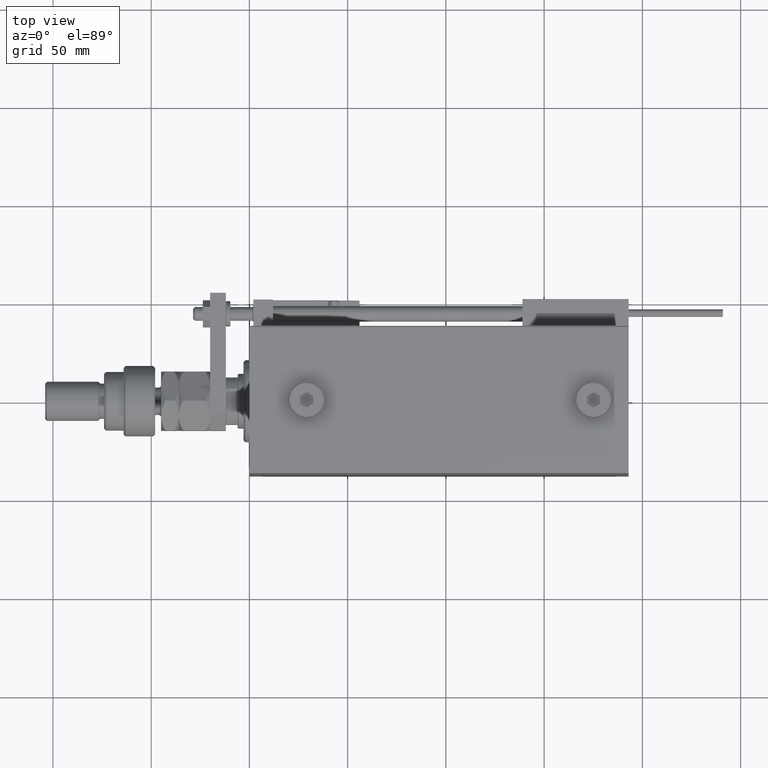
[diagram: clean part render]
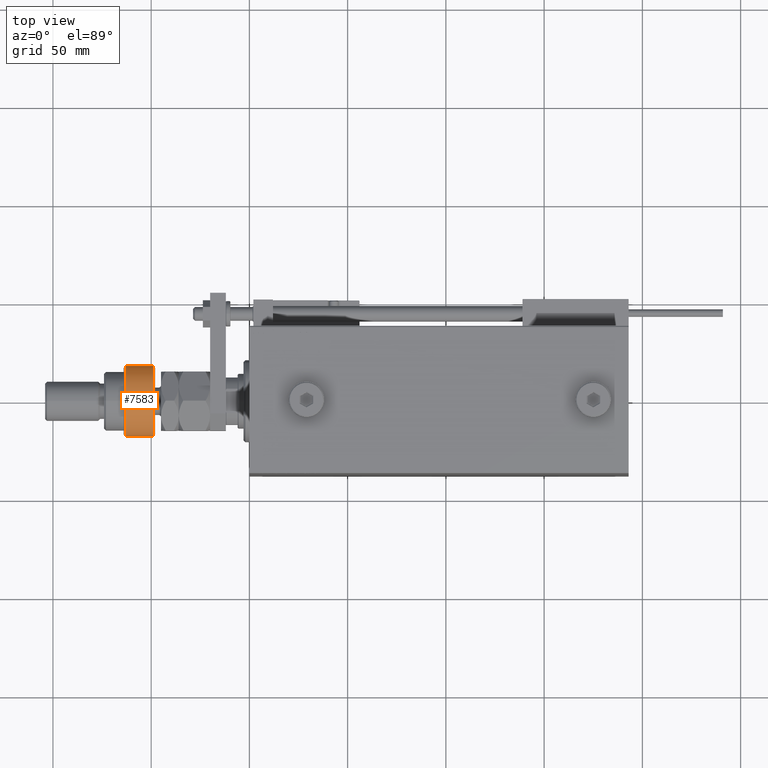
[diagram: same view with one face highlighted and labeled with its STEP entity id]
A machine part, top view. The second image highlights one B-rep face of the part: STEP entity #7583.
In plain terms, the highlighted cylindrical surface (edge-blend (fillet) strip) has radius 18 mm, axis along (1, -0, -0).
Its self-contained STEP definition (entity closure, byte-faithful):
#1040 = EDGE_CURVE ( 'NONE', #18775, #26937, #3044, .T. ) ;
#2154 = CIRCLE ( 'NONE', #39139, 18.00000000000000000 ) ;
#2356 = LINE ( 'NONE', #19147, #20988 ) ;
#3044 = CIRCLE ( 'NONE', #28574, 18.00000000000000000 ) ;
#3672 = CARTESIAN_POINT ( 'NONE',  ( -16.36306817195357155, -7.500000000000000000, 14.99999999999999645 ) ) ;
#4516 = DIRECTION ( 'NONE',  ( 1.000000000000000000, 0.000000000000000000, 0.000000000000000000 ) ) ;
#4824 = CIRCLE ( 'NONE', #18908, 18.00000000000000000 ) ;
#5431 = EDGE_CURVE ( 'NONE', #7237, #26937, #18659, .T. ) ;
#7088 = CYLINDRICAL_SURFACE ( 'NONE', #12610, 18.00000000000000000 ) ;
#7237 = VERTEX_POINT ( 'NONE', #40790 ) ;
#7583 = ADVANCED_FACE ( 'NONE', ( #23629 ), #7088, .T. ) ;
#10220 = EDGE_CURVE ( 'NONE', #10633, #18775, #2154, .T. ) ;
#10633 = VERTEX_POINT ( 'NONE', #53790 ) ;
#11167 = DIRECTION ( 'NONE',  ( 1.000000000000000000, 0.000000000000000000, 0.000000000000000000 ) ) ;
#12511 = CARTESIAN_POINT ( 'NONE',  ( 0.000000000000000000, 0.000000000000000000, 14.99999999999999645 ) ) ;
#12610 = AXIS2_PLACEMENT_3D ( 'NONE', #40457, #36318, #23085 ) ;
#13301 = CARTESIAN_POINT ( 'NONE',  ( -16.36306817195357155, 7.500000000000000000, 1.000000000000011324 ) ) ;
#13971 = CARTESIAN_POINT ( 'NONE',  ( -16.36306817195357155, 7.500000000000000000, 17.50000000000000000 ) ) ;
#17482 = ORIENTED_EDGE ( 'NONE', *, *, #51031, .T. ) ;
#18659 = LINE ( 'NONE', #13971, #38561 ) ;
#18775 = VERTEX_POINT ( 'NONE', #42665 ) ;
#18908 = AXIS2_PLACEMENT_3D ( 'NONE', #12511, #29883, #4516 ) ;
#19147 = CARTESIAN_POINT ( 'NONE',  ( -16.36306817195357155, -7.500000000000000000, 17.50000000000000000 ) ) ;
#19295 = EDGE_CURVE ( 'NONE', #45605, #10633, #2356, .T. ) ;
#19587 = ORIENTED_EDGE ( 'NONE', *, *, #1040, .T. ) ;
#20988 = VECTOR ( 'NONE', #43316, 1000.000000000000000 ) ;
#23085 = DIRECTION ( 'NONE',  ( -1.000000000000000000, 0.000000000000000000, 0.000000000000000000 ) ) ;
#23629 = FACE_OUTER_BOUND ( 'NONE', #28692, .T. ) ;
#24115 = DIRECTION ( 'NONE',  ( -0.000000000000000000, -0.000000000000000000, 1.000000000000000000 ) ) ;
#25622 = CARTESIAN_POINT ( 'NONE',  ( 0.000000000000000000, 0.000000000000000000, 1.000000000000011324 ) ) ;
#26937 = VERTEX_POINT ( 'NONE', #13301 ) ;
#28574 = AXIS2_PLACEMENT_3D ( 'NONE', #25622, #29497, #43241 ) ;
#28692 = EDGE_LOOP ( 'NONE', ( #52512, #17482, #48288, #47401, #19587 ) ) ;
#29497 = DIRECTION ( 'NONE',  ( -0.000000000000000000, -0.000000000000000000, 1.000000000000000000 ) ) ;
#29883 = DIRECTION ( 'NONE',  ( 0.000000000000000000, 0.000000000000000000, -1.000000000000000000 ) ) ;
#30798 = DIRECTION ( 'NONE',  ( -0.000000000000000000, -0.000000000000000000, -1.000000000000000000 ) ) ;
#36318 = DIRECTION ( 'NONE',  ( -0.000000000000000000, -0.000000000000000000, -1.000000000000000000 ) ) ;
#38561 = VECTOR ( 'NONE', #30798, 1000.000000000000000 ) ;
#39139 = AXIS2_PLACEMENT_3D ( 'NONE', #53587, #24115, #11167 ) ;
#40457 = CARTESIAN_POINT ( 'NONE',  ( 0.000000000000000000, 0.000000000000000000, 16.00000000000000000 ) ) ;
#40790 = CARTESIAN_POINT ( 'NONE',  ( -16.36306817195357155, 7.500000000000000000, 14.99999999999999645 ) ) ;
#42665 = CARTESIAN_POINT ( 'NONE',  ( 18.00000000000000000, 0.000000000000000000, 1.000000000000011324 ) ) ;
#43241 = DIRECTION ( 'NONE',  ( 1.000000000000000000, 0.000000000000000000, 0.000000000000000000 ) ) ;
#43316 = DIRECTION ( 'NONE',  ( -0.000000000000000000, -0.000000000000000000, -1.000000000000000000 ) ) ;
#45605 = VERTEX_POINT ( 'NONE', #3672 ) ;
#47401 = ORIENTED_EDGE ( 'NONE', *, *, #10220, .T. ) ;
#48288 = ORIENTED_EDGE ( 'NONE', *, *, #19295, .T. ) ;
#51031 = EDGE_CURVE ( 'NONE', #7237, #45605, #4824, .T. ) ;
#52512 = ORIENTED_EDGE ( 'NONE', *, *, #5431, .F. ) ;
#53587 = CARTESIAN_POINT ( 'NONE',  ( 0.000000000000000000, 0.000000000000000000, 1.000000000000011324 ) ) ;
#53790 = CARTESIAN_POINT ( 'NONE',  ( -16.36306817195357155, -7.500000000000000000, 1.000000000000011324 ) ) ;